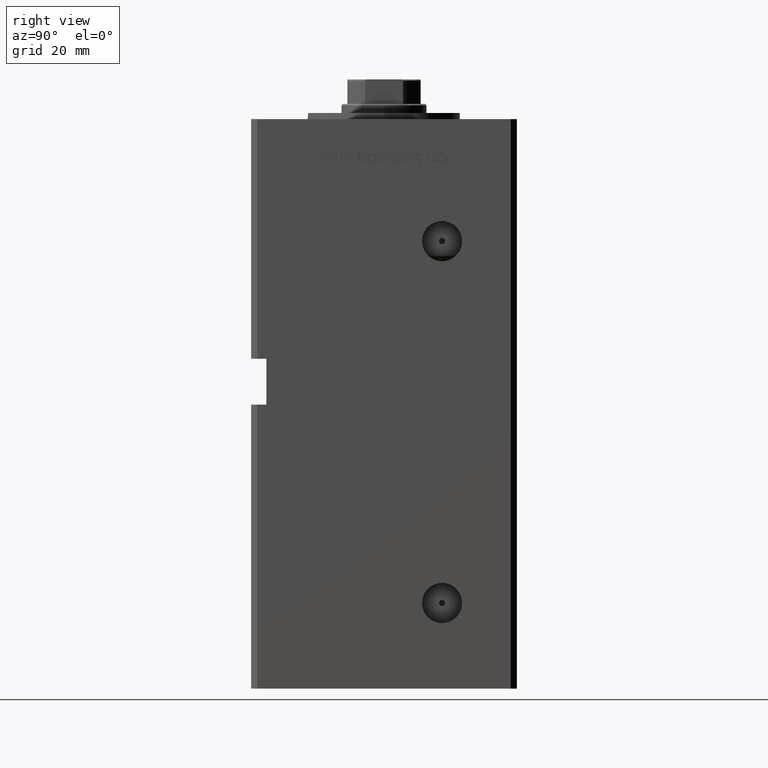
[diagram: clean part render]
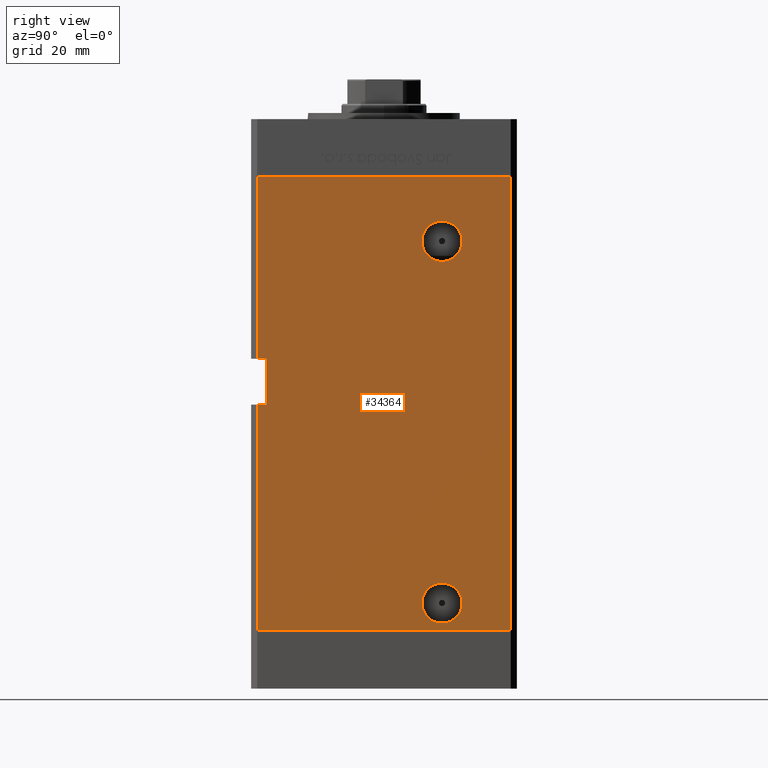
[diagram: same view with one face highlighted and labeled with its STEP entity id]
A machine part, right view. The second image highlights one B-rep face of the part: STEP entity #34364.
In plain terms, the highlighted planar face has unit normal (1, -0, 0).
Its self-contained STEP definition (entity closure, byte-faithful):
#473 = EDGE_CURVE ( 'NONE', #19018, #28192, #20266, .T. ) ;
#1879 = EDGE_LOOP ( 'NONE', ( #23835, #12696, #32075, #42755, #12547, #47766, #28052, #30760 ) ) ;
#2149 = CARTESIAN_POINT ( 'NONE',  ( 49.99999999999998579, -38.50000000000000000, 89.00000000000000000 ) ) ;
#2295 = CIRCLE ( 'NONE', #36661, 6.580000000000002736 ) ;
#3118 = FACE_BOUND ( 'NONE', #18720, .T. ) ;
#3294 = CARTESIAN_POINT ( 'NONE',  ( 50.00000000000001421, 41.49999999999999289, 0.000000000000000000 ) ) ;
#3653 = FACE_OUTER_BOUND ( 'NONE', #1879, .T. ) ;
#4393 = CARTESIAN_POINT ( 'NONE',  ( 49.99999999999998579, -41.49999999999999289, 148.5000000000000000 ) ) ;
#5625 = DIRECTION ( 'NONE',  ( 0.000000000000000000, 1.000000000000000000, 0.000000000000000000 ) ) ;
#7345 = VERTEX_POINT ( 'NONE', #18987 ) ;
#7376 = EDGE_CURVE ( 'NONE', #44952, #40119, #11268, .T. ) ;
#7824 = CARTESIAN_POINT ( 'NONE',  ( 50.00000000000000711, 25.57999999999998408, 9.000000000000007105 ) ) ;
#8159 = CARTESIAN_POINT ( 'NONE',  ( 50.00000000000000711, 12.41999999999998749, 127.5000000000000000 ) ) ;
#8254 = EDGE_CURVE ( 'NONE', #45522, #13935, #18581, .T. ) ;
#8974 = EDGE_LOOP ( 'NONE', ( #42577, #38557 ) ) ;
#9227 = CARTESIAN_POINT ( 'NONE',  ( 50.00000000000001421, 41.49999999999999289, 148.5000000000000000 ) ) ;
#11268 = LINE ( 'NONE', #11527, #11680 ) ;
#11527 = CARTESIAN_POINT ( 'NONE',  ( 49.99999999999998579, -38.50000000000000000, 89.00000000000000000 ) ) ;
#11680 = VECTOR ( 'NONE', #31962, 1000.000000000000000 ) ;
#11971 = EDGE_CURVE ( 'NONE', #33530, #26574, #39853, .T. ) ;
#12547 = ORIENTED_EDGE ( 'NONE', *, *, #11971, .T. ) ;
#12645 = EDGE_CURVE ( 'NONE', #28786, #15873, #2295, .T. ) ;
#12696 = ORIENTED_EDGE ( 'NONE', *, *, #473, .T. ) ;
#13036 = EDGE_CURVE ( 'NONE', #33530, #7345, #47611, .T. ) ;
#13292 = VECTOR ( 'NONE', #20808, 1000.000000000000000 ) ;
#13935 = VERTEX_POINT ( 'NONE', #52741 ) ;
#14358 = CARTESIAN_POINT ( 'NONE',  ( 50.00000000000000711, 18.99999999999998934, 127.5000000000000000 ) ) ;
#14603 = AXIS2_PLACEMENT_3D ( 'NONE', #42799, #47118, #34495 ) ;
#15386 = CARTESIAN_POINT ( 'NONE',  ( 49.99999999999998579, -41.49999999999999289, 89.00000000000000000 ) ) ;
#15873 = VERTEX_POINT ( 'NONE', #8159 ) ;
#18581 = CIRCLE ( 'NONE', #22872, 6.580000000000002736 ) ;
#18635 = EDGE_CURVE ( 'NONE', #7345, #28192, #40127, .T. ) ;
#18720 = EDGE_LOOP ( 'NONE', ( #27943, #28272 ) ) ;
#18728 = VECTOR ( 'NONE', #23666, 1000.000000000000000 ) ;
#18791 = EDGE_CURVE ( 'NONE', #25833, #44952, #36641, .T. ) ;
#18987 = CARTESIAN_POINT ( 'NONE',  ( 50.00000000000001421, 41.49999999999999289, 0.000000000000000000 ) ) ;
#19018 = VERTEX_POINT ( 'NONE', #19909 ) ;
#19080 = CARTESIAN_POINT ( 'NONE',  ( 49.99999999999998579, -41.49999999999999289, 148.5000000000000000 ) ) ;
#19909 = CARTESIAN_POINT ( 'NONE',  ( 49.99999999999998579, -41.49999999999999289, 74.00000000000000000 ) ) ;
#20266 = LINE ( 'NONE', #4393, #13292 ) ;
#20474 = CARTESIAN_POINT ( 'NONE',  ( 50.00000000000000711, 25.57999999999999119, 127.5000000000000000 ) ) ;
#20501 = DIRECTION ( 'NONE',  ( -0.000000000000000000, -0.000000000000000000, 1.000000000000000000 ) ) ;
#20700 = DIRECTION ( 'NONE',  ( -3.344045254895050973E-16, -1.000000000000000000, 0.000000000000000000 ) ) ;
#20808 = DIRECTION ( 'NONE',  ( -0.000000000000000000, -0.000000000000000000, -1.000000000000000000 ) ) ;
#22584 = DIRECTION ( 'NONE',  ( -0.000000000000000000, -0.000000000000000000, -1.000000000000000000 ) ) ;
#22872 = AXIS2_PLACEMENT_3D ( 'NONE', #51331, #46776, #5625 ) ;
#22938 = DIRECTION ( 'NONE',  ( 0.000000000000000000, 1.000000000000000000, 0.000000000000000000 ) ) ;
#23353 = VECTOR ( 'NONE', #35457, 1000.000000000000000 ) ;
#23462 = CARTESIAN_POINT ( 'NONE',  ( 50.00000000000001421, 41.49999999999999289, 148.5000000000000000 ) ) ;
#23556 = CARTESIAN_POINT ( 'NONE',  ( 50.00000000000001421, 41.49999999999999289, 148.5000000000000000 ) ) ;
#23666 = DIRECTION ( 'NONE',  ( -0.000000000000000000, -0.000000000000000000, -1.000000000000000000 ) ) ;
#23835 = ORIENTED_EDGE ( 'NONE', *, *, #31560, .T. ) ;
#24459 = EDGE_CURVE ( 'NONE', #26574, #40119, #42467, .T. ) ;
#24703 = CARTESIAN_POINT ( 'NONE',  ( 49.99999999999998579, -41.49999999999999289, 0.000000000000000000 ) ) ;
#25833 = VERTEX_POINT ( 'NONE', #46944 ) ;
#26534 = VECTOR ( 'NONE', #20501, 1000.000000000000000 ) ;
#26574 = VERTEX_POINT ( 'NONE', #47433 ) ;
#27116 = CARTESIAN_POINT ( 'NONE',  ( 49.99999999999998579, -38.50000000000000000, 74.00000000000000000 ) ) ;
#27251 = DIRECTION ( 'NONE',  ( 1.000000000000000000, -2.275047181608927644E-16, 0.000000000000000000 ) ) ;
#27401 = VECTOR ( 'NONE', #32081, 1000.000000000000000 ) ;
#27453 = CARTESIAN_POINT ( 'NONE',  ( 50.00000000000001421, 41.49999999999999289, 148.5000000000000000 ) ) ;
#27943 = ORIENTED_EDGE ( 'NONE', *, *, #12645, .F. ) ;
#28052 = ORIENTED_EDGE ( 'NONE', *, *, #7376, .F. ) ;
#28192 = VERTEX_POINT ( 'NONE', #24703 ) ;
#28272 = ORIENTED_EDGE ( 'NONE', *, *, #51274, .F. ) ;
#28786 = VERTEX_POINT ( 'NONE', #20474 ) ;
#30760 = ORIENTED_EDGE ( 'NONE', *, *, #18791, .F. ) ;
#31368 = FACE_BOUND ( 'NONE', #8974, .T. ) ;
#31560 = EDGE_CURVE ( 'NONE', #25833, #19018, #39995, .T. ) ;
#31962 = DIRECTION ( 'NONE',  ( -0.000000000000000000, -1.000000000000000000, -0.000000000000000000 ) ) ;
#32075 = ORIENTED_EDGE ( 'NONE', *, *, #18635, .F. ) ;
#32081 = DIRECTION ( 'NONE',  ( -3.344045254895050973E-16, -1.000000000000000000, 0.000000000000000000 ) ) ;
#33530 = VERTEX_POINT ( 'NONE', #9227 ) ;
#34364 = ADVANCED_FACE ( 'NONE', ( #3653, #31368, #3118 ), #47763, .T. ) ;
#34495 = DIRECTION ( 'NONE',  ( 0.000000000000000000, 1.000000000000000000, 0.000000000000000000 ) ) ;
#35457 = DIRECTION ( 'NONE',  ( -0.000000000000000000, -1.000000000000000000, -0.000000000000000000 ) ) ;
#36641 = LINE ( 'NONE', #50055, #26534 ) ;
#36661 = AXIS2_PLACEMENT_3D ( 'NONE', #14358, #27251, #22938 ) ;
#37003 = VECTOR ( 'NONE', #22584, 1000.000000000000000 ) ;
#37781 = CIRCLE ( 'NONE', #14603, 6.580000000000002736 ) ;
#38557 = ORIENTED_EDGE ( 'NONE', *, *, #39687, .F. ) ;
#39150 = AXIS2_PLACEMENT_3D ( 'NONE', #41113, #44889, #45423 ) ;
#39687 = EDGE_CURVE ( 'NONE', #13935, #45522, #44297, .T. ) ;
#39853 = LINE ( 'NONE', #23462, #49619 ) ;
#39951 = DIRECTION ( 'NONE',  ( 1.000000000000000000, -3.344045254895050480E-16, 0.000000000000000000 ) ) ;
#39995 = LINE ( 'NONE', #27116, #23353 ) ;
#40119 = VERTEX_POINT ( 'NONE', #15386 ) ;
#40127 = LINE ( 'NONE', #3294, #27401 ) ;
#41113 = CARTESIAN_POINT ( 'NONE',  ( 50.00000000000000711, 18.99999999999998224, 9.000000000000007105 ) ) ;
#42467 = LINE ( 'NONE', #19080, #37003 ) ;
#42577 = ORIENTED_EDGE ( 'NONE', *, *, #8254, .F. ) ;
#42755 = ORIENTED_EDGE ( 'NONE', *, *, #13036, .F. ) ;
#42799 = CARTESIAN_POINT ( 'NONE',  ( 50.00000000000000711, 18.99999999999998934, 127.5000000000000000 ) ) ;
#43157 = AXIS2_PLACEMENT_3D ( 'NONE', #23556, #39951, #43987 ) ;
#43987 = DIRECTION ( 'NONE',  ( 3.344045254895050480E-16, 1.000000000000000000, 0.000000000000000000 ) ) ;
#44297 = CIRCLE ( 'NONE', #39150, 6.580000000000002736 ) ;
#44889 = DIRECTION ( 'NONE',  ( 1.000000000000000000, -2.275047181608927644E-16, 0.000000000000000000 ) ) ;
#44952 = VERTEX_POINT ( 'NONE', #2149 ) ;
#45423 = DIRECTION ( 'NONE',  ( 0.000000000000000000, 1.000000000000000000, 0.000000000000000000 ) ) ;
#45522 = VERTEX_POINT ( 'NONE', #7824 ) ;
#46776 = DIRECTION ( 'NONE',  ( 1.000000000000000000, -2.275047181608927644E-16, 0.000000000000000000 ) ) ;
#46944 = CARTESIAN_POINT ( 'NONE',  ( 49.99999999999998579, -38.49999999999999289, 74.00000000000000000 ) ) ;
#47118 = DIRECTION ( 'NONE',  ( 1.000000000000000000, -2.275047181608927644E-16, 0.000000000000000000 ) ) ;
#47433 = CARTESIAN_POINT ( 'NONE',  ( 49.99999999999998579, -41.49999999999999289, 148.5000000000000000 ) ) ;
#47611 = LINE ( 'NONE', #27453, #18728 ) ;
#47763 = PLANE ( 'NONE',  #43157 ) ;
#47766 = ORIENTED_EDGE ( 'NONE', *, *, #24459, .T. ) ;
#49619 = VECTOR ( 'NONE', #20700, 1000.000000000000000 ) ;
#50055 = CARTESIAN_POINT ( 'NONE',  ( 49.99999999999998579, -38.50000000000000000, 89.00000000000000000 ) ) ;
#51274 = EDGE_CURVE ( 'NONE', #15873, #28786, #37781, .T. ) ;
#51331 = CARTESIAN_POINT ( 'NONE',  ( 50.00000000000000711, 18.99999999999998224, 9.000000000000007105 ) ) ;
#52741 = CARTESIAN_POINT ( 'NONE',  ( 50.00000000000000711, 12.41999999999998039, 9.000000000000007105 ) ) ;